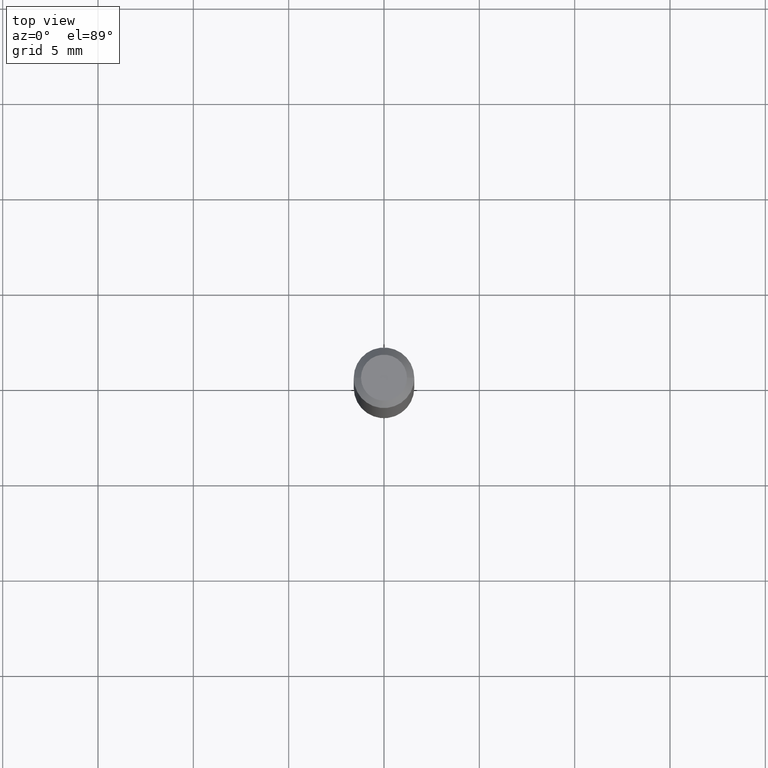
[diagram: clean part render]
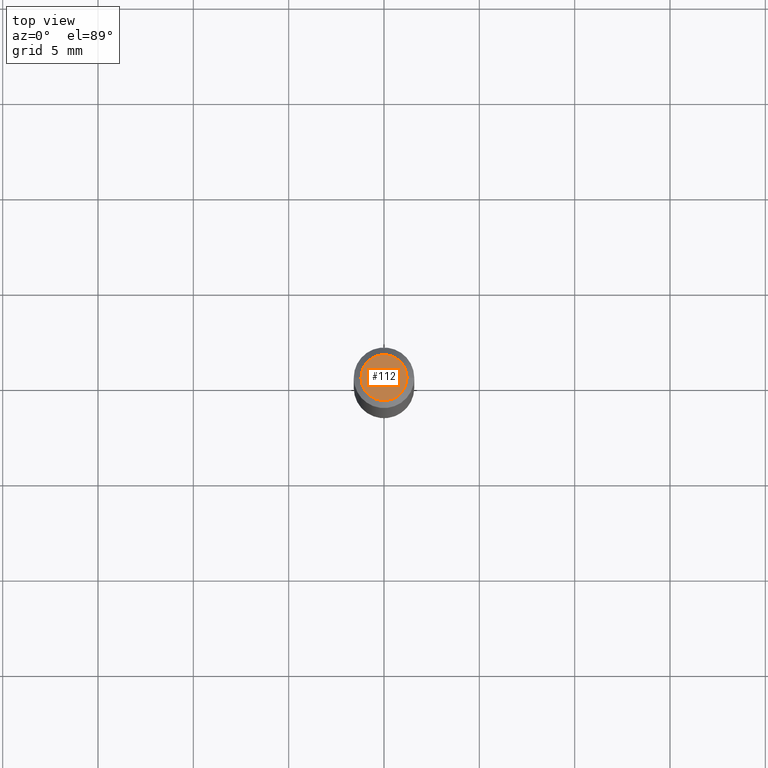
[diagram: same view with one face highlighted and labeled with its STEP entity id]
A machine part, top view. The second image highlights one B-rep face of the part: STEP entity #112.
In plain terms, the highlighted planar face has unit normal (0, -0, -1).
Its self-contained STEP definition (entity closure, byte-faithful):
#33 = EDGE_CURVE ( 'NONE', #404, #441, #369, .T. ) ;
#52 = CARTESIAN_POINT ( 'NONE',  ( 1.278896122067429216E-44, -1.825924719719875646E-30, -5.229656247639779395E-16 ) ) ;
#63 = DIRECTION ( 'NONE',  ( -1.000000000000000000, 6.982962677686265922E-15, -4.876176775795935793E-29 ) ) ;
#97 = DIRECTION ( 'NONE',  ( 2.438088387897960049E-29, -3.491481338843145188E-15, -1.000000000000000000 ) ) ;
#112 = ADVANCED_FACE ( 'NONE', ( #137 ), #171, .F. ) ;
#126 = ORIENTED_EDGE ( 'NONE', *, *, #195, .T. ) ;
#137 = FACE_OUTER_BOUND ( 'NONE', #177, .T. ) ;
#169 = CARTESIAN_POINT ( 'NONE',  ( -0.04749999999999999362, 3.578768372314202124E-16, -5.229656247639803061E-16 ) ) ;
#170 = DIRECTION ( 'NONE',  ( 1.000000000000000000, -6.982962677686267499E-15, 4.852736867747366768E-29 ) ) ;
#171 = PLANE ( 'NONE',  #324 ) ;
#177 = EDGE_LOOP ( 'NONE', ( #126, #291 ) ) ;
#189 = DIRECTION ( 'NONE',  ( -2.445468806185136597E-29, 3.491481338843145583E-15, 1.000000000000000000 ) ) ;
#195 = EDGE_CURVE ( 'NONE', #441, #404, #415, .T. ) ;
#202 = CARTESIAN_POINT ( 'NONE',  ( 3.316907271900976096E-16, 0.04749999999999999362, -4.273281759770383169E-16 ) ) ;
#266 = AXIS2_PLACEMENT_3D ( 'NONE', #427, #384, #170 ) ;
#291 = ORIENTED_EDGE ( 'NONE', *, *, #33, .T. ) ;
#324 = AXIS2_PLACEMENT_3D ( 'NONE', #202, #97, #63 ) ;
#327 = CARTESIAN_POINT ( 'NONE',  ( 0.04749999999999999362, -4.035134999187587991E-16, -5.229656247639753758E-16 ) ) ;
#330 = AXIS2_PLACEMENT_3D ( 'NONE', #52, #189, #333 ) ;
#333 = DIRECTION ( 'NONE',  ( 1.000000000000000000, -6.982962677686267499E-15, 4.852736867747366768E-29 ) ) ;
#369 = CIRCLE ( 'NONE', #330, 0.04749999999999999362 ) ;
#384 = DIRECTION ( 'NONE',  ( -2.445468806185136597E-29, 3.491481338843145583E-15, 1.000000000000000000 ) ) ;
#404 = VERTEX_POINT ( 'NONE', #327 ) ;
#415 = CIRCLE ( 'NONE', #266, 0.04749999999999999362 ) ;
#427 = CARTESIAN_POINT ( 'NONE',  ( 1.278896122067429216E-44, -1.825924719719875646E-30, -5.229656247639779395E-16 ) ) ;
#441 = VERTEX_POINT ( 'NONE', #169 ) ;